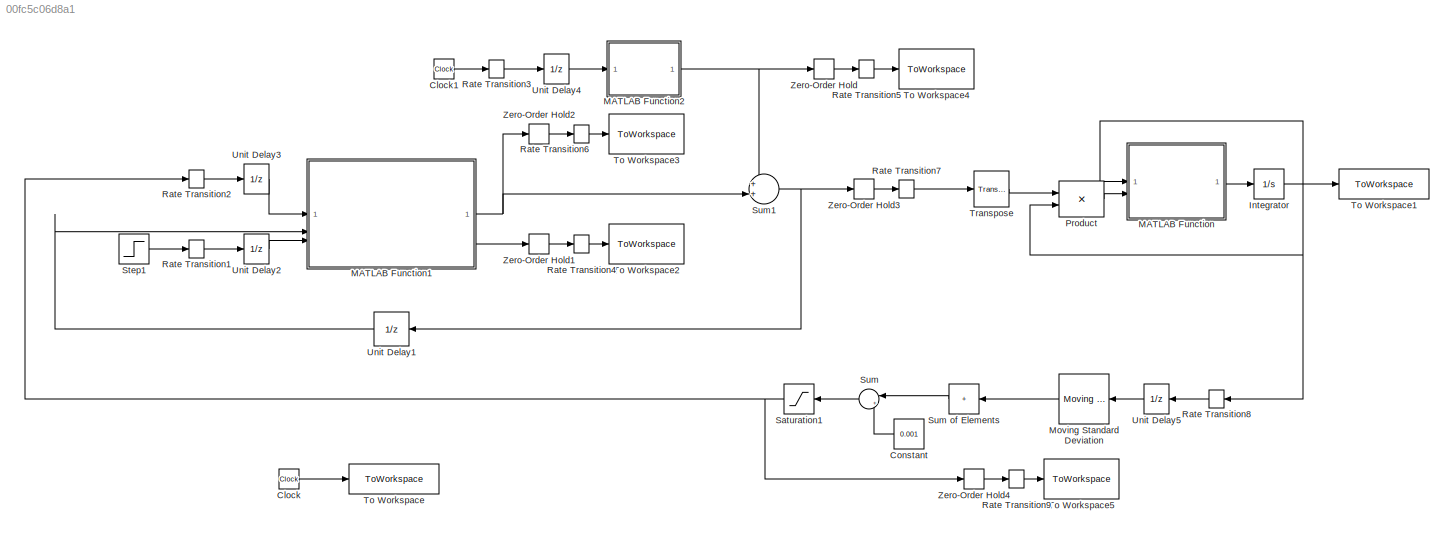
MODEL slx_00fc5c06d8a1
KIND model
CONFIG AbsTol = auto
CONFIG EnableMultiTasking = off
CONFIG FixedStep = Ts
CONFIG MaxStep = auto
CONFIG MinStep = auto
CONFIG RelTol = 1e-3
CONFIG SampleTimeConstraint = Unconstrained
CONFIG SolverName = ode4
CONFIG StartTime = 0.0
CONFIG StopTime = Tf
BLOCK [Clock] Clock
BLOCK [Clock] Clock1
BLOCK [Constant] Constant
  Value = 0.001
BLOCK [Integrator] Integrator
  InitialCondition = x0
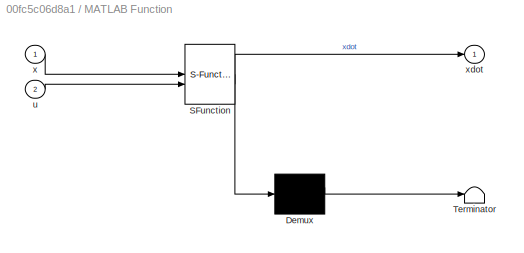
BLOCK [SubSystem] MATLAB Function
  ErrorFcn = Stateflow.Translate.translate
  PermitHierarchicalResolution = ExplicitOnly
  SFBlockType = MATLAB Function
  TreatAsAtomicUnit = on
BLOCK [Demux] MATLAB Function/ Demux 
  Outputs = 1
BLOCK [S-Function] MATLAB Function/ SFunction 
  EnableBusSupport = on
  FunctionName = sf_sfun
  PortCounts = [2 2]
  SFcnIsStateOwnerBlock = off
  SFunctionDeploymentMode = off
  Tag = Stateflow S-Function 2
BLOCK [Terminator] MATLAB Function/ Terminator 
BLOCK [Inport] MATLAB Function/u
  Port = 2
BLOCK [Inport] MATLAB Function/x
BLOCK [Outport] MATLAB Function/xdot
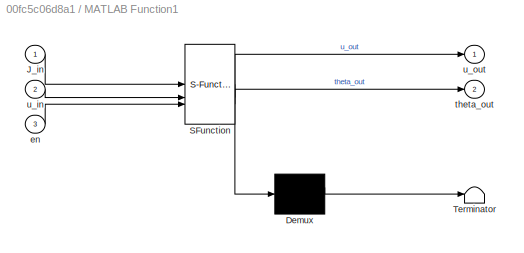
BLOCK [SubSystem] MATLAB Function1
  ErrorFcn = Stateflow.Translate.translate
  LibrarySourceBlock = simulink/User-Defined\nFunctions/MATLAB Function
  PermitHierarchicalResolution = ExplicitOnly
  SFBlockType = MATLAB Function
  TreatAsAtomicUnit = on
BLOCK [Demux] MATLAB Function1/ Demux 
  Outputs = 1
BLOCK [S-Function] MATLAB Function1/ SFunction 
  EnableBusSupport = on
  FunctionName = sf_sfun
  Parameters = Nc
  PortCounts = [3 3]
  SFcnIsStateOwnerBlock = off
  SFunctionDeploymentMode = off
  Tag = Stateflow S-Function 1
BLOCK [Terminator] MATLAB Function1/ Terminator 
BLOCK [Inport] MATLAB Function1/J_in
BLOCK [Inport] MATLAB Function1/en
  Port = 3
BLOCK [Outport] MATLAB Function1/theta_out
  Port = 2
BLOCK [Inport] MATLAB Function1/u_in
  Port = 2
BLOCK [Outport] MATLAB Function1/u_out
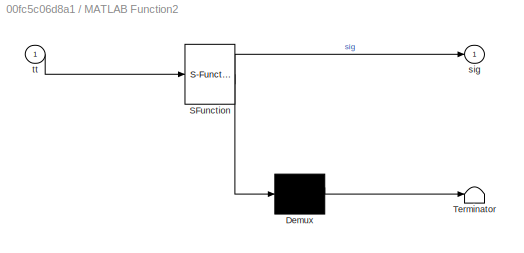
BLOCK [SubSystem] MATLAB Function2
  ErrorFcn = Stateflow.Translate.translate
  LibrarySourceBlock = simulink/User-Defined\nFunctions/MATLAB Function
  PermitHierarchicalResolution = ExplicitOnly
  SFBlockType = MATLAB Function
  TreatAsAtomicUnit = on
BLOCK [Demux] MATLAB Function2/ Demux 
  Outputs = 1
BLOCK [S-Function] MATLAB Function2/ SFunction 
  EnableBusSupport = on
  FunctionName = sf_sfun
  Parameters = T_samp,t_start
  PortCounts = [1 2]
  SFcnIsStateOwnerBlock = off
  SFunctionDeploymentMode = off
  Tag = Stateflow S-Function 3
BLOCK [Terminator] MATLAB Function2/ Terminator 
BLOCK [Outport] MATLAB Function2/sig
BLOCK [Inport] MATLAB Function2/tt
BLOCK [Reference] Moving Standard Deviation  REF=dspstat3/Moving
Standard
Deviation
  SourceBlock = dspstat3/Moving\nStandard\nDeviation
  SourceType = dsp.simulink.MovingStandardDeviation
BLOCK [Product] Product
  Multiplication = Matrix(*)
BLOCK [RateTransition] Rate Transition1
  NameLocation = top
BLOCK [RateTransition] Rate Transition2
  NameLocation = top
BLOCK [RateTransition] Rate Transition3
  NameLocation = top
BLOCK [RateTransition] Rate Transition4
  NameLocation = top
BLOCK [RateTransition] Rate Transition5
  InitialCondition = [0;0]
  NameLocation = top
BLOCK [RateTransition] Rate Transition6
  InitialCondition = [0;0]
  NameLocation = top
BLOCK [RateTransition] Rate Transition7
  InitialCondition = [0;0]
  NameLocation = top
BLOCK [RateTransition] Rate Transition8
  NameLocation = top
BLOCK [RateTransition] Rate Transition9
  NameLocation = top
BLOCK [Saturate] Saturation1
  LowerLimit = 0
  UpperLimit = 1000
BLOCK [Step] Step1
  SampleTime = 0
  Time = t_start
BLOCK [Sum] Sum
  Inputs = |+-
BLOCK [Sum] Sum of Elements
  IconShape = rectangular
  Inputs = +
BLOCK [Sum] Sum1
  Inputs = ++|
BLOCK [ToWorkspace] To Workspace
  FixptAsFi = on
  MaxDataPoints = inf
  SampleTime = -1
  VariableName = tt
BLOCK [ToWorkspace] To Workspace1
  FixptAsFi = on
  MaxDataPoints = inf
  SampleTime = -1
  VariableName = xx
BLOCK [ToWorkspace] To Workspace2
  FixptAsFi = on
  MaxDataPoints = inf
  SampleTime = -1
  VariableName = theta
BLOCK [ToWorkspace] To Workspace3
  FixptAsFi = on
  MaxDataPoints = inf
  SampleTime = -1
  VariableName = u_RCAC
BLOCK [ToWorkspace] To Workspace4
  FixptAsFi = on
  MaxDataPoints = inf
  SampleTime = -1
  VariableName = pert
BLOCK [ToWorkspace] To Workspace5
  FixptAsFi = on
  MaxDataPoints = inf
  SampleTime = -1
  VariableName = JJ
BLOCK [Reference] Transpose  REF=matrix_library/Transpose
  LibrarySourceBlock = simulink/Matrix\nOperations/Transpose
  SourceBlock = matrix_library/Transpose
  SourceType = Transpose
BLOCK [UnitDelay] Unit Delay1
  HasFrameUpgradeWarning = on
  InitialCondition = [0;0]
  SampleTime = T_samp
BLOCK [UnitDelay] Unit Delay2
  HasFrameUpgradeWarning = on
  SampleTime = T_samp
BLOCK [UnitDelay] Unit Delay3
  HasFrameUpgradeWarning = on
  SampleTime = T_samp
BLOCK [UnitDelay] Unit Delay4
  HasFrameUpgradeWarning = on
  SampleTime = T_samp
BLOCK [UnitDelay] Unit Delay5
  HasFrameUpgradeWarning = on
  SampleTime = Ts
BLOCK [ZeroOrderHold] Zero-Order Hold
  SampleTime = T_samp
BLOCK [ZeroOrderHold] Zero-Order Hold1
  SampleTime = T_samp
BLOCK [ZeroOrderHold] Zero-Order Hold2
  SampleTime = T_samp
BLOCK [ZeroOrderHold] Zero-Order Hold3
  SampleTime = T_samp
BLOCK [ZeroOrderHold] Zero-Order Hold4
  SampleTime = T_samp
LINE Clock1:1 -> Rate Transition3:1
LINE Clock:1 -> To Workspace:1
LINE Constant:1 -> Sum:2
NET Integrator:1 -> MATLAB Function:1, Product:2, Rate Transition8:1, To Workspace1:1
NET MATLAB Function1:1 -> Sum1:2, Zero-Order Hold2:1
LINE MATLAB Function1:2 -> Zero-Order Hold1:1
NET MATLAB Function2:1 -> Sum1:1, Zero-Order Hold:1
LINE MATLAB Function:1 -> Integrator:1
LINE Moving Standard Deviation:1 -> Sum of Elements:1
LINE Product:1 -> MATLAB Function:2
LINE Rate Transition1:1 -> Unit Delay2:1
LINE Rate Transition2:1 -> Unit Delay3:1
LINE Rate Transition3:1 -> Unit Delay4:1
LINE Rate Transition4:1 -> To Workspace2:1
LINE Rate Transition5:1 -> To Workspace4:1
LINE Rate Transition6:1 -> To Workspace3:1
LINE Rate Transition7:1 -> Transpose:1
LINE Rate Transition8:1 -> Unit Delay5:1
LINE Rate Transition9:1 -> To Workspace5:1
NET Saturation1:1 -> Rate Transition2:1, Zero-Order Hold4:1
LINE Step1:1 -> Rate Transition1:1
LINE Sum of Elements:1 -> Sum:1
NET Sum1:1 -> Unit Delay1:1, Zero-Order Hold3:1
LINE Sum:1 -> Saturation1:1
LINE Transpose:1 -> Product:1
LINE Unit Delay1:1 -> MATLAB Function1:2
LINE Unit Delay2:1 -> MATLAB Function1:3
LINE Unit Delay3:1 -> MATLAB Function1:1
LINE Unit Delay4:1 -> MATLAB Function2:1
LINE Unit Delay5:1 -> Moving Standard Deviation:1
LINE Zero-Order Hold1:1 -> Rate Transition4:1
LINE Zero-Order Hold2:1 -> Rate Transition6:1
LINE Zero-Order Hold3:1 -> Rate Transition7:1
LINE Zero-Order Hold4:1 -> Rate Transition9:1
LINE Zero-Order Hold:1 -> Rate Transition5:1
note: NET lines group one-source signal fan-out (src -> all destinations, sorted); 1:1 wires keep LINE
CHART MATLAB Function1 states=1 transitions=1
  STATE_LABEL 'eML_blk_kernel()'
  STATE_LABEL 'SCRIPT:\nfunction [u_out, theta_out] = RCAC_ESC(J_in, u_in, en, Nc)\n\npersistent Grad_Est DDRCAC_Cont uouttemp thetaouttemp opts Nf_prev\n\nif isempty(uouttemp)\n    opts = RCAC_ESC_KF_MISO_define_opts();\n    Grad_Est = grad_est_KF(opts.lu, opts.lz, opts.indi, opts.P0_G, opts.Q, opts.R);\n    DDRCAC_Cont = DDRCAC(opts.lu, opts.lz, opts.Nc, opts.P0_C, opts.Ru, opts.nu);\n    uouttemp = [0;0];\n    thetaout...<+846ch>'
CHART MATLAB Function states=1 transitions=1
  STATE_LABEL 'eML_blk_kernel()'
  STATE_LABEL 'SCRIPT:\nfunction xdot = fcn(x,u)\n\nxdot = [x(2) ;...\n        -x(1) - ((x(2))^2 - 1)*x(2) + u];\n\nend'
CHART MATLAB Function2 states=1 transitions=1
  STATE_LABEL 'eML_blk_kernel()'
  STATE_LABEL 'SCRIPT:\nfunction sig = Perturbation(tt,T_samp, t_start)\n    sig = PertFcnMISOVdP(tt, T_samp, t_start);\nend'
CHART  states=0 transitions=0
CHART  states=0 transitions=0
CHART  states=0 transitions=0
